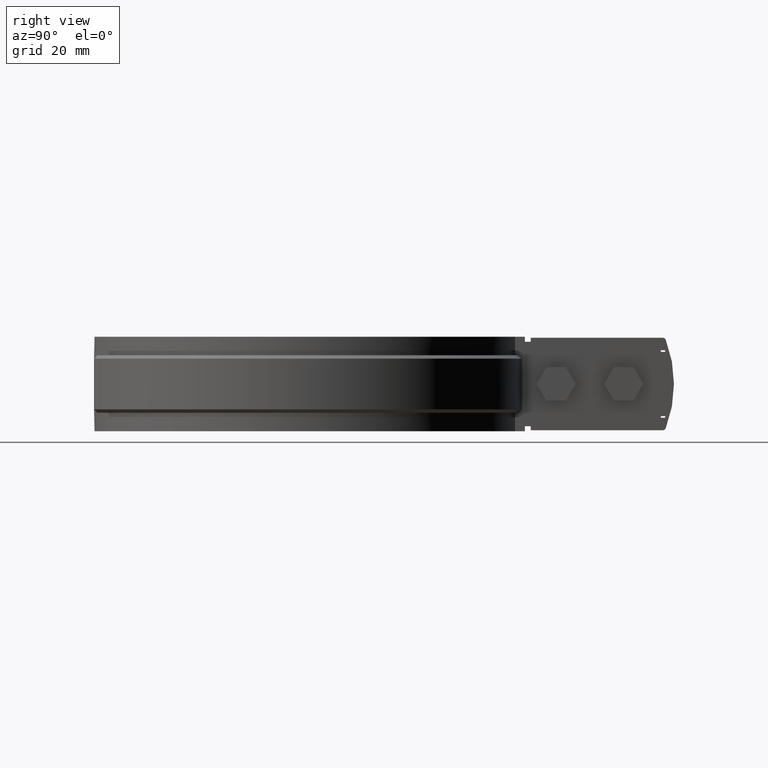
[diagram: clean part render]
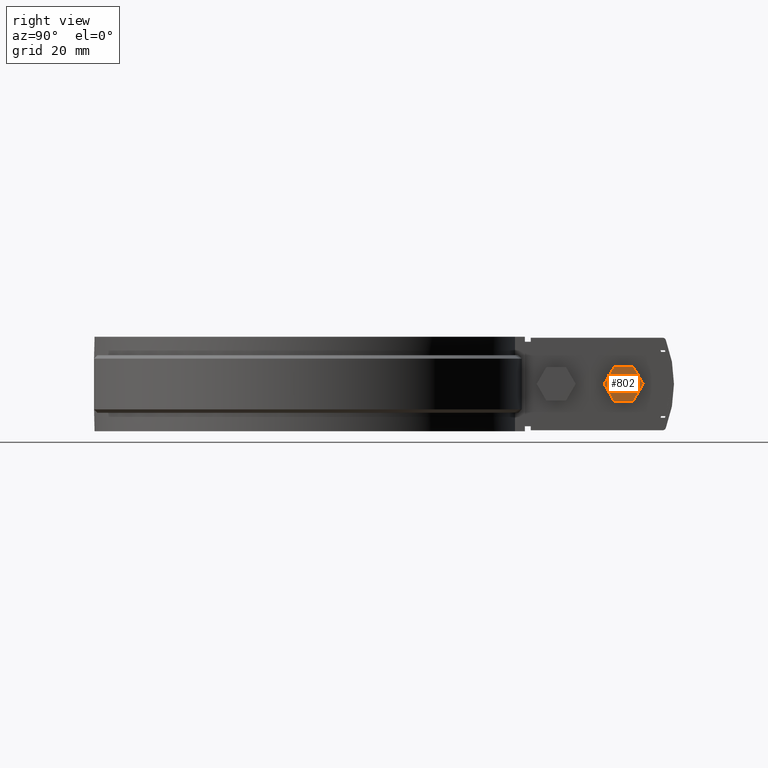
[diagram: same view with one face highlighted and labeled with its STEP entity id]
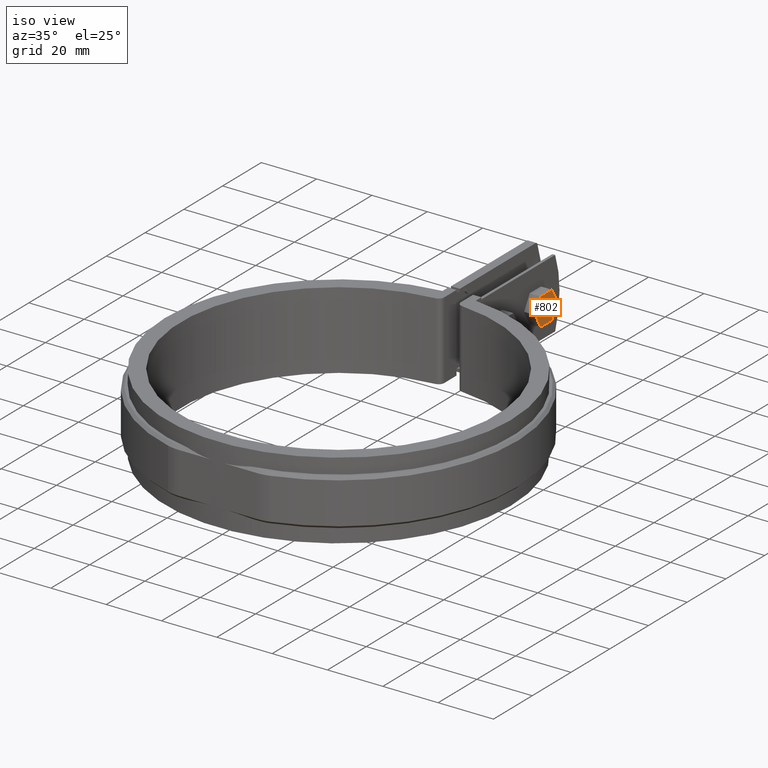
[diagram: same view with one face highlighted and labeled with its STEP entity id]
A machine part, right view. The second image highlights one B-rep face of the part: STEP entity #802.
A second angle (iso view) of the same face is appended — the face is thin or edge-on in the first view.
In plain terms, the highlighted planar face has unit normal (-1, -0, 0).
Its self-contained STEP definition (entity closure, byte-faithful):
#802 = ADVANCED_FACE( '', ( #1553 ), #1554, .F. );
#1553 = FACE_OUTER_BOUND( '', #3136, .T. );
#1554 = PLANE( '', #3137 );
#3136 = EDGE_LOOP( '', ( #6950, #6951, #6952, #6953, #6954, #6955 ) );
#3137 = AXIS2_PLACEMENT_3D( '', #6956, #6957, #6958 );
#6950 = ORIENTED_EDGE( '', *, *, #7946, .T. );
#6951 = ORIENTED_EDGE( '', *, *, #7943, .T. );
#6952 = ORIENTED_EDGE( '', *, *, #7949, .T. );
#6953 = ORIENTED_EDGE( '', *, *, #7953, .T. );
#6954 = ORIENTED_EDGE( '', *, *, #7951, .T. );
#6955 = ORIENTED_EDGE( '', *, *, #7954, .T. );
#6956 = CARTESIAN_POINT( '', ( 9.00000000000010, 85.7410496776625, 5.00000000000022 ) );
#6957 = DIRECTION( '', ( -1.00000000000000, -6.22301527786106E-061, 1.07785786375327E-060 ) );
#6958 = DIRECTION( '', ( -6.22301527786106E-061, 1.00000000000000, 7.44684975184581E-137 ) );
#7943 = EDGE_CURVE( '', #9491, #9489, #9492, .T. );
#7946 = EDGE_CURVE( '', #9496, #9491, #9497, .T. );
#7949 = EDGE_CURVE( '', #9489, #9499, #9501, .T. );
#7951 = EDGE_CURVE( '', #9504, #9502, #9505, .T. );
#7953 = EDGE_CURVE( '', #9499, #9504, #9507, .T. );
#7954 = EDGE_CURVE( '', #9502, #9496, #9508, .T. );
#9489 = VERTEX_POINT( '', #13786 );
#9491 = VERTEX_POINT( '', #13789 );
#9492 = LINE( '', #13790, #13791 );
#9496 = VERTEX_POINT( '', #13796 );
#9497 = LINE( '', #13797, #13798 );
#9499 = VERTEX_POINT( '', #13801 );
#9501 = LINE( '', #13804, #13805 );
#9502 = VERTEX_POINT( '', #13806 );
#9504 = VERTEX_POINT( '', #13809 );
#9505 = LINE( '', #13810, #13811 );
#9507 = LINE( '', #13814, #13815 );
#9508 = LINE( '', #13816, #13817 );
#13786 = CARTESIAN_POINT( '', ( 9.00000000000010, 97.2880550614553, -5.00000000000016 ) );
#13789 = CARTESIAN_POINT( '', ( 9.00000000000010, 91.5145523695589, -5.00000000000011 ) );
#13790 = CARTESIAN_POINT( '', ( 9.00000000000010, 91.5145523695589, -5.00000000000011 ) );
#13791 = VECTOR( '', #15092, 1000.00000000000 );
#13796 = CARTESIAN_POINT( '', ( 9.00000000000010, 88.6278010236107, 5.63785129692475E-014 ) );
#13797 = CARTESIAN_POINT( '', ( 9.00000000000010, 88.6278010236107, 5.63785129692475E-014 ) );
#13798 = VECTOR( '', #15097, 1000.00000000000 );
#13801 = CARTESIAN_POINT( '', ( 9.00000000000010, 100.174806407403, -5.98479599212011E-014 ) );
#13804 = CARTESIAN_POINT( '', ( 9.00000000000010, 97.2880550614553, -5.00000000000016 ) );
#13805 = VECTOR( '', #15100, 1000.00000000000 );
#13806 = CARTESIAN_POINT( '', ( 9.00000000000010, 91.5145523695588, 5.00000000000016 ) );
#13809 = CARTESIAN_POINT( '', ( 9.00000000000010, 97.2880550614552, 5.00000000000010 ) );
#13810 = CARTESIAN_POINT( '', ( 9.00000000000010, 97.2880550614552, 5.00000000000010 ) );
#13811 = VECTOR( '', #15102, 1000.00000000000 );
#13814 = CARTESIAN_POINT( '', ( 9.00000000000010, 100.174806407403, -5.98479599212011E-014 ) );
#13815 = VECTOR( '', #15104, 1000.00000000000 );
#13816 = CARTESIAN_POINT( '', ( 9.00000000000010, 91.5145523695588, 5.00000000000016 ) );
#13817 = VECTOR( '', #15105, 1000.00000000000 );
#15092 = DIRECTION( '', ( -6.22301527786116E-061, 1.00000000000000, -9.82547376793270E-015 ) );
#15097 = DIRECTION( '', ( -1.24460305557221E-060, 0.500000000000000, -0.866025403784439 ) );
#15100 = DIRECTION( '', ( 6.22301527786116E-061, 0.499999999999992, 0.866025403784443 ) );
#15102 = DIRECTION( '', ( 6.22301527786116E-061, -1.00000000000000, 9.82547376793270E-015 ) );
#15104 = DIRECTION( '', ( 1.24460305557221E-060, -0.500000000000000, 0.866025403784439 ) );
#15105 = DIRECTION( '', ( -6.22301527786116E-061, -0.499999999999992, -0.866025403784443 ) );